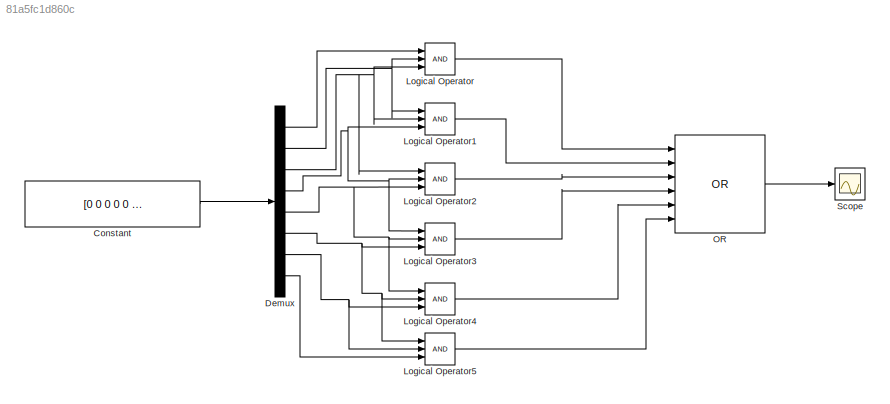
MODEL slx_81a5fc1d860c
KIND model
CONFIG AbsTol = auto
CONFIG EnableMultiTasking = off
CONFIG FixedStep = auto
CONFIG MaxStep = auto
CONFIG MinStep = auto
CONFIG RelTol = 1e-3
CONFIG SampleTimeConstraint = Unconstrained
CONFIG SolverName = VariableStepAuto
CONFIG StartTime = 0.0
CONFIG StopTime = 1
BLOCK [Constant] Constant
  Value = [0 0 0 0 0 1 1 1]
BLOCK [Demux] Demux
  Outputs = 8
BLOCK [Logic] Logical Operator
  AllPortsSameDT = off
  IconShape = distinctive
  Inputs = 3
  OutDataTypeStr = boolean
BLOCK [Logic] Logical Operator1
  AllPortsSameDT = off
  IconShape = distinctive
  Inputs = 3
  OutDataTypeStr = boolean
BLOCK [Logic] Logical Operator2
  AllPortsSameDT = off
  IconShape = distinctive
  Inputs = 3
  OutDataTypeStr = boolean
BLOCK [Logic] Logical Operator3
  AllPortsSameDT = off
  IconShape = distinctive
  Inputs = 3
  OutDataTypeStr = boolean
BLOCK [Logic] Logical Operator4
  AllPortsSameDT = off
  IconShape = distinctive
  Inputs = 3
  OutDataTypeStr = boolean
BLOCK [Logic] Logical Operator5
  AllPortsSameDT = off
  IconShape = distinctive
  Inputs = 3
  OutDataTypeStr = boolean
BLOCK [Logic] OR
  AllPortsSameDT = off
  IconShape = distinctive
  Inputs = 6
  Operator = OR
  OutDataTypeStr = boolean
BLOCK [Scope] Scope
  Floating = off
  NumInputPorts = 1
  ScopeSpecificationString = Simulink.scopes.TimeScopeBlockCfg('CurrentConfiguration', extmgr.ConfigurationSet(extmgr.Configuration('Core','General UI',true),extmgr.Configuration('Core','Source UI',true),extmgr.Configuration('Sources','WiredSimulink',true),extmgr.Configuration('Visuals','Time Domain',true,'SerializedDisplays',{struct('MinYLimReal','0.9','MaxYLimReal','1.1','YLabelReal','','MinYLimMag','0.9','MaxYLimMag','1.1'...<+1378ch>
LINE Constant:1 -> Demux:1
LINE Demux:1 -> Logical Operator:1
NET Demux:2 -> Logical Operator1:1, Logical Operator:2
NET Demux:3 -> Logical Operator1:2, Logical Operator2:1, Logical Operator:3
NET Demux:4 -> Logical Operator1:3, Logical Operator2:2, Logical Operator3:1
NET Demux:5 -> Logical Operator2:3, Logical Operator3:2, Logical Operator4:1
NET Demux:6 -> Logical Operator3:3, Logical Operator4:2, Logical Operator5:1
NET Demux:7 -> Logical Operator4:3, Logical Operator5:2
LINE Demux:8 -> Logical Operator5:3
LINE Logical Operator1:1 -> OR:2
LINE Logical Operator2:1 -> OR:3
LINE Logical Operator3:1 -> OR:4
LINE Logical Operator4:1 -> OR:5
LINE Logical Operator5:1 -> OR:6
LINE Logical Operator:1 -> OR:1
LINE OR:1 -> Scope:1
note: NET lines group one-source signal fan-out (src -> all destinations, sorted); 1:1 wires keep LINE
